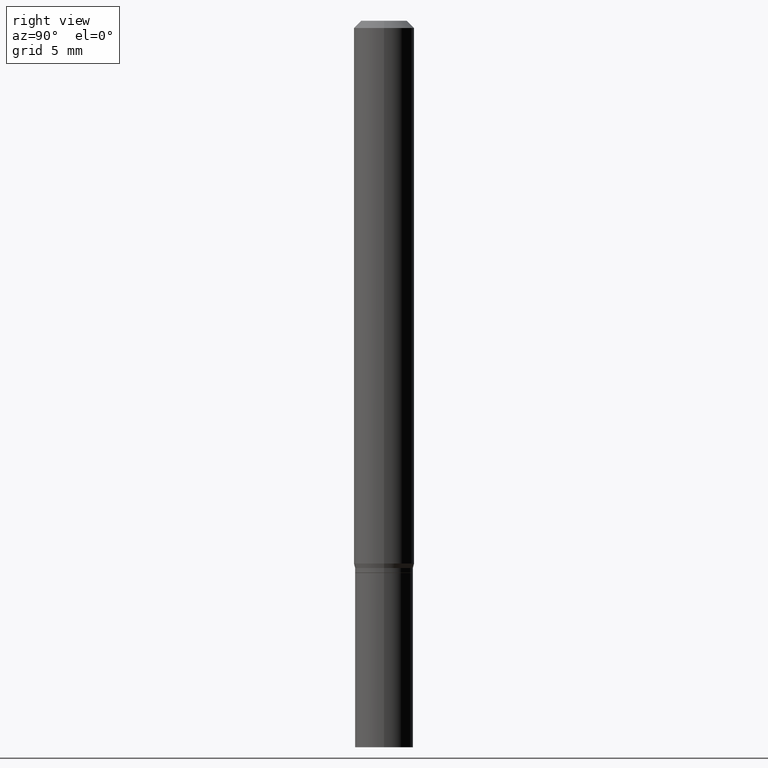
[diagram: clean part render]
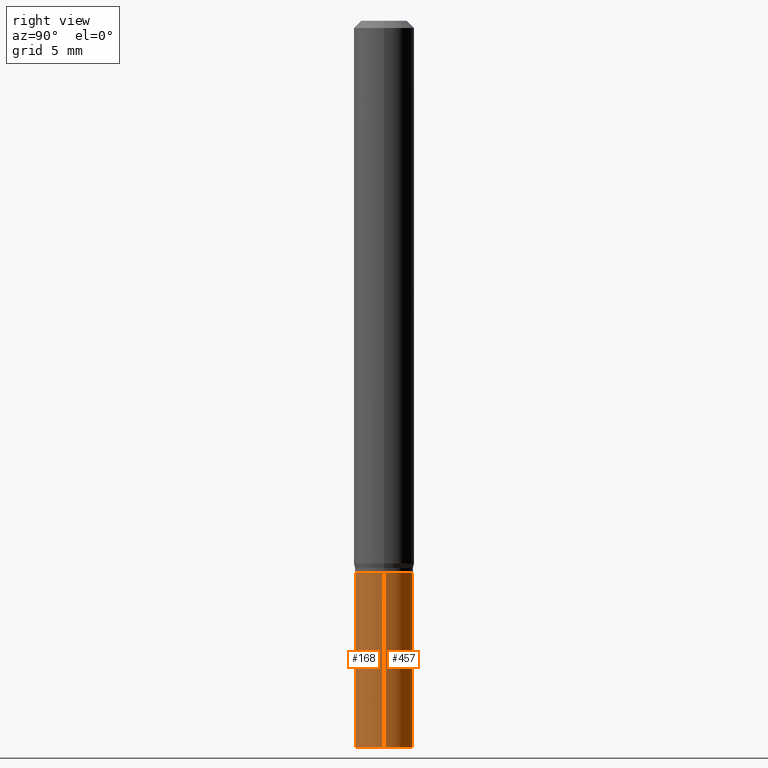
[diagram: same view with one multi-face feature highlighted, each face labeled with its STEP entity id]
A machine part, right view. The highlighted faces form ONE feature: a constant-radius fillet chain: 2 tangent blend faces with common blend radius 1.524 mm. The faces share edges in the B-rep.
Their STEP definitions:
[1] entity #168 (Cylinder):
#1 = LINE ( 'NONE', #50, #366 ) ;
#3 = EDGE_CURVE ( 'NONE', #417, #411, #206, .T. ) ;
#8 = CARTESIAN_POINT ( 'NONE',  ( 0.05999999999999999778, -4.189777606611760421E-16, 2.925706065477561756E-30 ) ) ;
#20 = VERTEX_POINT ( 'NONE', #271 ) ;
#33 = ORIENTED_EDGE ( 'NONE', *, *, #3, .T. ) ;
#36 = DIRECTION ( 'NONE',  ( 1.000000000000000000, -6.982962677686268288E-15, 0.000000000000000000 ) ) ;
#49 = VECTOR ( 'NONE', #442, 39.37007874015748143 ) ;
#50 = CARTESIAN_POINT ( 'NONE',  ( -0.05999999999999999778, 4.263256414560600957E-16, -2.951361054152943413E-30 ) ) ;
#71 = CARTESIAN_POINT ( 'NONE',  ( -0.05999999999999999778, -4.182429725816891947E-15, -1.500000000000000222 ) ) ;
#79 = EDGE_CURVE ( 'NONE', #417, #267, #1, .T. ) ;
#90 = EDGE_LOOP ( 'NONE', ( #348, #33, #456, #232 ) ) ;
#136 = CARTESIAN_POINT ( 'NONE',  ( 2.787834439051055989E-29, -3.980288726281186698E-15, -1.140000000000000124 ) ) ;
#168 = ADVANCED_FACE ( 'NONE', ( #179 ), #338, .T. ) ;
#179 = FACE_OUTER_BOUND ( 'NONE', #90, .T. ) ;
#199 = EDGE_CURVE ( 'NONE', #267, #20, #288, .T. ) ;
#206 = CIRCLE ( 'NONE', #398, 0.05999999999999999778 ) ;
#218 = CARTESIAN_POINT ( 'NONE',  ( -0.05999999999999999778, -4.182429725816891947E-15, -1.140000000000000124 ) ) ;
#232 = ORIENTED_EDGE ( 'NONE', *, *, #199, .F. ) ;
#237 = DIRECTION ( 'NONE',  ( -2.445468806185136597E-29, 3.491481338843145583E-15, 1.000000000000000000 ) ) ;
#247 = AXIS2_PLACEMENT_3D ( 'NONE', #136, #274, #36 ) ;
#258 = EDGE_CURVE ( 'NONE', #411, #20, #284, .T. ) ;
#267 = VERTEX_POINT ( 'NONE', #218 ) ;
#271 = CARTESIAN_POINT ( 'NONE',  ( 0.05999999999999999778, -4.399266486942362543E-15, -1.140000000000000124 ) ) ;
#274 = DIRECTION ( 'NONE',  ( -2.445468806185136597E-29, 3.491481338843145583E-15, 1.000000000000000000 ) ) ;
#284 = LINE ( 'NONE', #8, #49 ) ;
#288 = CIRCLE ( 'NONE', #247, 0.05999999999999999778 ) ;
#296 = DIRECTION ( 'NONE',  ( -2.445468806185136877E-29, 3.491481338843145188E-15, 1.000000000000000000 ) ) ;
#310 = DIRECTION ( 'NONE',  ( 1.000000000000000000, -6.982962677686268288E-15, 0.000000000000000000 ) ) ;
#338 = CYLINDRICAL_SURFACE ( 'NONE', #450, 0.05999999999999999778 ) ;
#348 = ORIENTED_EDGE ( 'NONE', *, *, #79, .F. ) ;
#353 = CARTESIAN_POINT ( 'NONE',  ( 0.05999999999999999778, -5.656199768925894810E-15, -1.500000000000000222 ) ) ;
#366 = VECTOR ( 'NONE', #296, 39.37007874015748143 ) ;
#398 = AXIS2_PLACEMENT_3D ( 'NONE', #415, #237, #310 ) ;
#411 = VERTEX_POINT ( 'NONE', #353 ) ;
#415 = CARTESIAN_POINT ( 'NONE',  ( 3.668203209277704895E-29, -5.237222008264718177E-15, -1.500000000000000222 ) ) ;
#417 = VERTEX_POINT ( 'NONE', #71 ) ;
#429 = CARTESIAN_POINT ( 'NONE',  ( 0.000000000000000000, 0.000000000000000000, 0.000000000000000000 ) ) ;
#442 = DIRECTION ( 'NONE',  ( -2.445468806185136877E-29, 3.491481338843145188E-15, 1.000000000000000000 ) ) ;
#450 = AXIS2_PLACEMENT_3D ( 'NONE', #429, #465, #453 ) ;
#453 = DIRECTION ( 'NONE',  ( 1.000000000000000000, -6.982962677686267499E-15, 4.876176775795936353E-29 ) ) ;
#456 = ORIENTED_EDGE ( 'NONE', *, *, #258, .T. ) ;
#465 = DIRECTION ( 'NONE',  ( -2.445468806185136597E-29, 3.491481338843145583E-15, 1.000000000000000000 ) ) ;
[2] entity #457 (Cylinder):
#1 = LINE ( 'NONE', #50, #366 ) ;
#8 = CARTESIAN_POINT ( 'NONE',  ( 0.05999999999999999778, -4.189777606611760421E-16, 2.925706065477561756E-30 ) ) ;
#14 = EDGE_CURVE ( 'NONE', #411, #417, #350, .T. ) ;
#20 = VERTEX_POINT ( 'NONE', #271 ) ;
#35 = FACE_OUTER_BOUND ( 'NONE', #163, .T. ) ;
#49 = VECTOR ( 'NONE', #442, 39.37007874015748143 ) ;
#50 = CARTESIAN_POINT ( 'NONE',  ( -0.05999999999999999778, 4.263256414560600957E-16, -2.951361054152943413E-30 ) ) ;
#69 = CARTESIAN_POINT ( 'NONE',  ( 3.668203209277704895E-29, -5.237222008264718177E-15, -1.500000000000000222 ) ) ;
#71 = CARTESIAN_POINT ( 'NONE',  ( -0.05999999999999999778, -4.182429725816891947E-15, -1.500000000000000222 ) ) ;
#79 = EDGE_CURVE ( 'NONE', #417, #267, #1, .T. ) ;
#93 = AXIS2_PLACEMENT_3D ( 'NONE', #423, #109, #107 ) ;
#107 = DIRECTION ( 'NONE',  ( 1.000000000000000000, -6.982962677686268288E-15, 0.000000000000000000 ) ) ;
#109 = DIRECTION ( 'NONE',  ( -2.445468806185136597E-29, 3.491481338843145583E-15, 1.000000000000000000 ) ) ;
#122 = CIRCLE ( 'NONE', #93, 0.05999999999999999778 ) ;
#141 = CYLINDRICAL_SURFACE ( 'NONE', #313, 0.05999999999999999778 ) ;
#163 = EDGE_LOOP ( 'NONE', ( #405, #370, #333, #452 ) ) ;
#201 = AXIS2_PLACEMENT_3D ( 'NONE', #69, #336, #458 ) ;
#209 = EDGE_CURVE ( 'NONE', #20, #267, #122, .T. ) ;
#218 = CARTESIAN_POINT ( 'NONE',  ( -0.05999999999999999778, -4.182429725816891947E-15, -1.140000000000000124 ) ) ;
#223 = DIRECTION ( 'NONE',  ( 1.000000000000000000, -6.982962677686267499E-15, 4.876176775795936353E-29 ) ) ;
#258 = EDGE_CURVE ( 'NONE', #411, #20, #284, .T. ) ;
#267 = VERTEX_POINT ( 'NONE', #218 ) ;
#271 = CARTESIAN_POINT ( 'NONE',  ( 0.05999999999999999778, -4.399266486942362543E-15, -1.140000000000000124 ) ) ;
#284 = LINE ( 'NONE', #8, #49 ) ;
#296 = DIRECTION ( 'NONE',  ( -2.445468806185136877E-29, 3.491481338843145188E-15, 1.000000000000000000 ) ) ;
#313 = AXIS2_PLACEMENT_3D ( 'NONE', #396, #425, #223 ) ;
#333 = ORIENTED_EDGE ( 'NONE', *, *, #209, .F. ) ;
#336 = DIRECTION ( 'NONE',  ( -2.445468806185136597E-29, 3.491481338843145583E-15, 1.000000000000000000 ) ) ;
#350 = CIRCLE ( 'NONE', #201, 0.05999999999999999778 ) ;
#353 = CARTESIAN_POINT ( 'NONE',  ( 0.05999999999999999778, -5.656199768925894810E-15, -1.500000000000000222 ) ) ;
#366 = VECTOR ( 'NONE', #296, 39.37007874015748143 ) ;
#370 = ORIENTED_EDGE ( 'NONE', *, *, #79, .T. ) ;
#396 = CARTESIAN_POINT ( 'NONE',  ( 0.000000000000000000, 0.000000000000000000, 0.000000000000000000 ) ) ;
#405 = ORIENTED_EDGE ( 'NONE', *, *, #14, .T. ) ;
#411 = VERTEX_POINT ( 'NONE', #353 ) ;
#417 = VERTEX_POINT ( 'NONE', #71 ) ;
#423 = CARTESIAN_POINT ( 'NONE',  ( 2.787834439051055989E-29, -3.980288726281186698E-15, -1.140000000000000124 ) ) ;
#425 = DIRECTION ( 'NONE',  ( -2.445468806185136597E-29, 3.491481338843145583E-15, 1.000000000000000000 ) ) ;
#442 = DIRECTION ( 'NONE',  ( -2.445468806185136877E-29, 3.491481338843145188E-15, 1.000000000000000000 ) ) ;
#452 = ORIENTED_EDGE ( 'NONE', *, *, #258, .F. ) ;
#457 = ADVANCED_FACE ( 'NONE', ( #35 ), #141, .T. ) ;
#458 = DIRECTION ( 'NONE',  ( 1.000000000000000000, -6.982962677686268288E-15, 0.000000000000000000 ) ) ;